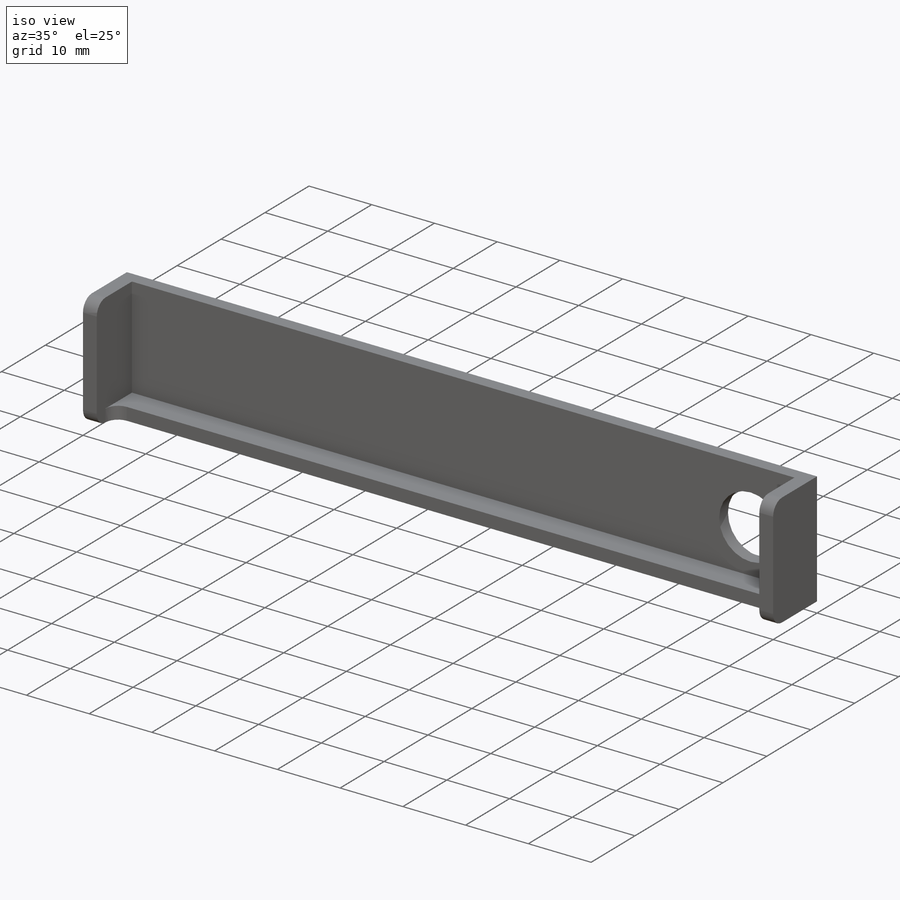
[diagram: iso view]
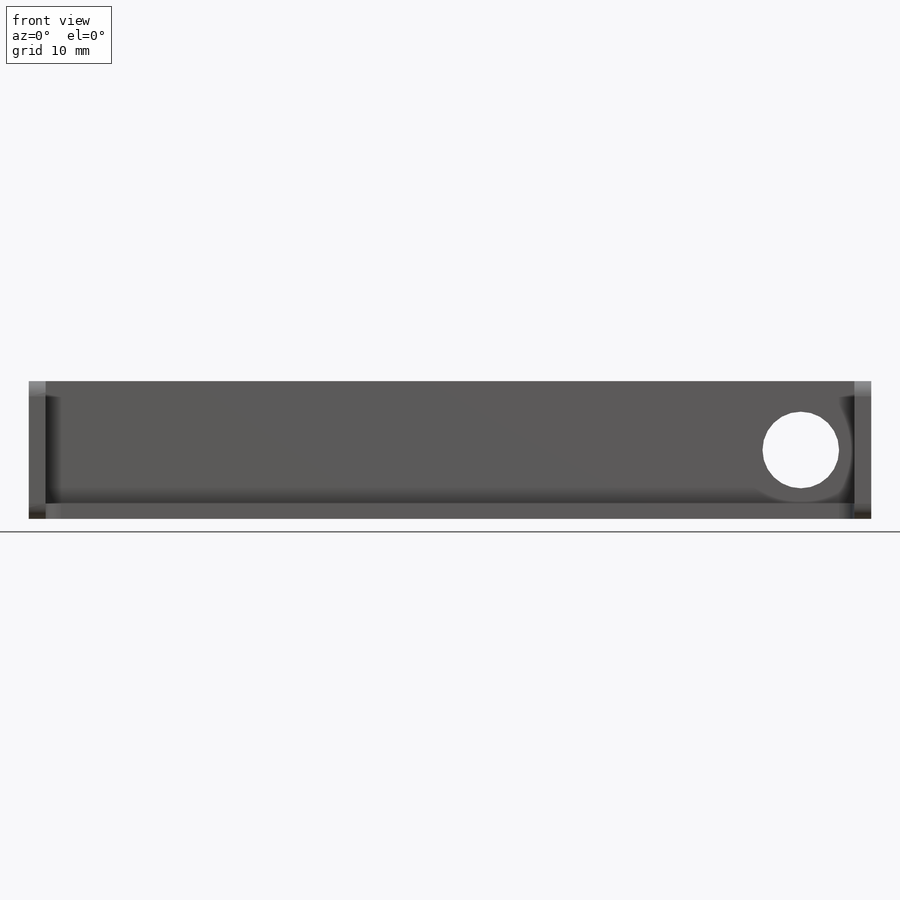
[diagram: front view]
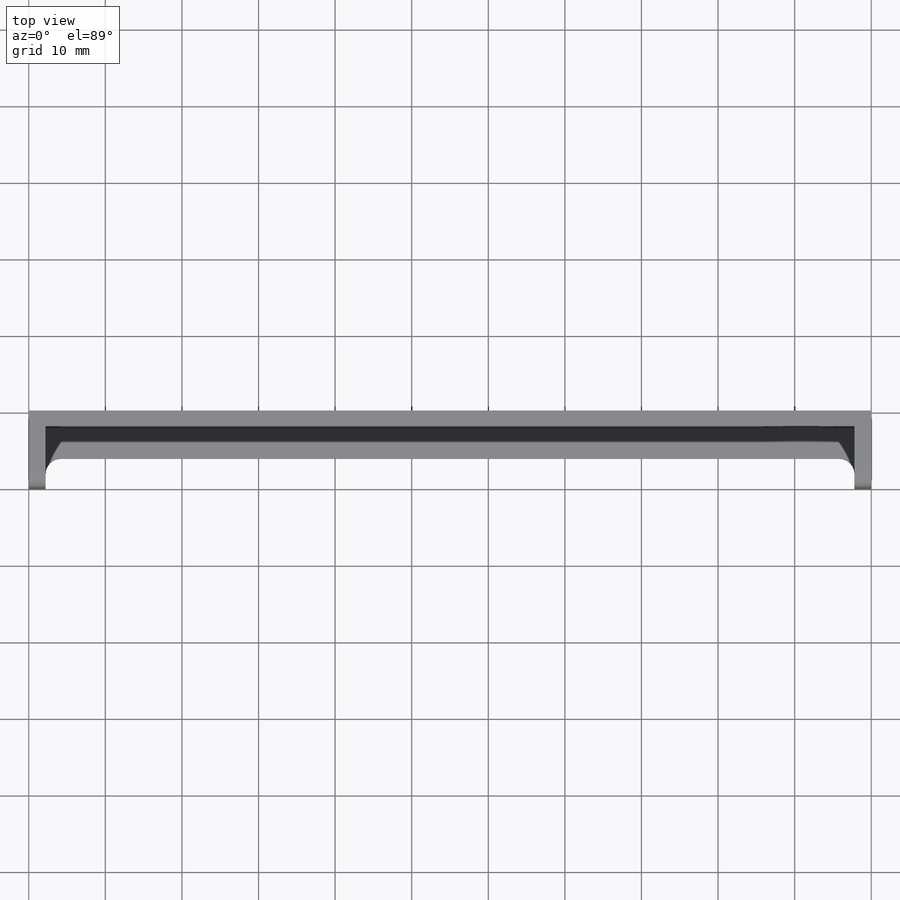
[diagram: top view]
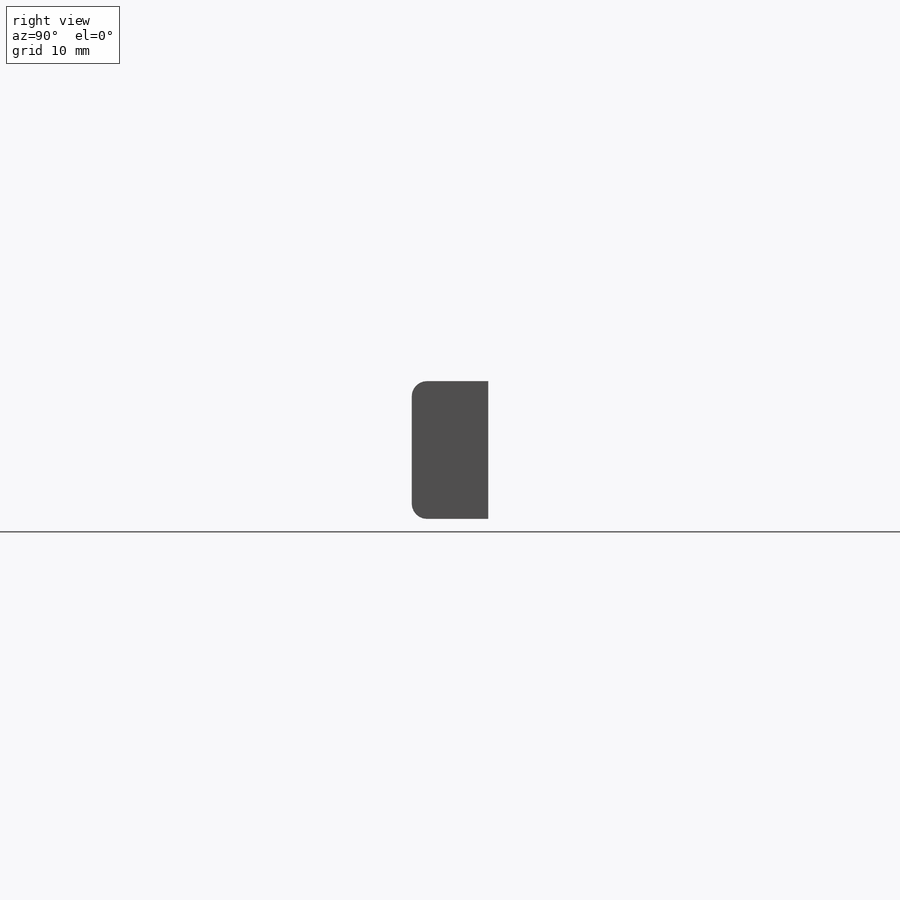
[diagram: right view]
SOLIDWORKS PART (.sldprt)
format: sldprt  version: not decoded by parser v0  size: 195,072 bytes
history: native  units: mm
features: sketch x5, extrude x4, material x1, fillet x1, cut_extrude x1 (+11 scaffold rows collapsed)
feature tree (23):
  scaffold x11  (default folders/planes/origin — collapsed)
  material  "Material <not specified>"
  sketch  "Sketch1"  dims[D1=110.0mm D2=18.0mm]
  extrude  "Boss-Extrude1"  Depth=2mm
  sketch  "Sketch2"  dims[D1=2.0mm]
  extrude  "Boss-Extrude2"  Depth=4mm
  sketch  "Sketch3"  dims[D1=2.2mm]
  extrude  "Boss-Extrude3"  Depth=8mm
  fillet  "Fillet1"  Radius=2mm
  sketch  "Sketch4"  dims[D1=12.5mm D2=~0.606387mm D3=1.75mm D4=15.0mm]
  extrude  "Boss-Extrude4"  [1 undecoded]
  sketch  "Sketch5"  dims[c1.D2=10.0mm c1.D1=7.1mm c1.D3=9.0mm c2.D1=2.0mm]
  cut_extrude  "Cut-Extrude1"  [1 undecoded]
decode coverage: 9 of 11 modeling features carry decoded parameters
note: ~ marks probable driven/reference dimensions
note: 2 parameter values undecoded
note: suppression state not decoded; provenance and decode notes live in map.json
